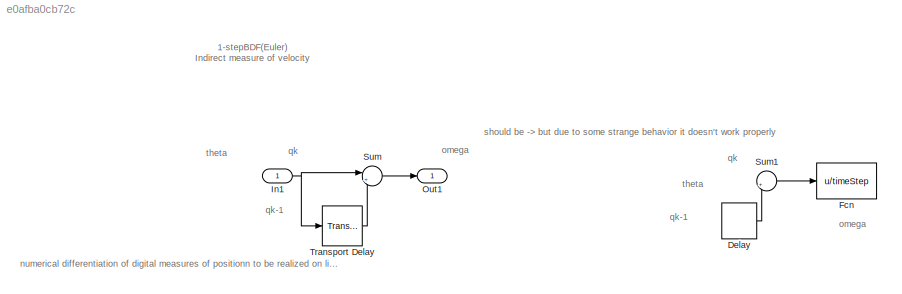
MODEL slx_e0afba0cb72c
KIND model
CONFIG AbsTol = auto
CONFIG EnableMultiTasking = off
CONFIG FixedStep = auto
CONFIG MaxStep = auto
CONFIG MinStep = auto
CONFIG RelTol = 1e-3
CONFIG SampleTimeConstraint = Unconstrained
CONFIG Solver = VariableStepAuto
CONFIG SolverName = VariableStepAuto
CONFIG StartTime = 0.0
CONFIG StopTime = 10.0
BLOCK [Delay] Delay
  Commented = on
  DelayLength = 1
  InitialCondition = 0
  InputPortMap = u0
  Ports = [1, 1]
  SampleTime = timeStep
BLOCK [Fcn] Fcn
  Commented = on
  Expr = u/timeStep
BLOCK [Inport] In1
  IconDisplay = Port number
BLOCK [Outport] Out1
  IconDisplay = Port number
BLOCK [Sum] Sum
  IconShape = round
  InputSameDT = off
  Inputs = |+-
  OutDataTypeStr = Inherit: Inherit via internal rule
  Ports = [2, 1]
  SaturateOnIntegerOverflow = off
BLOCK [Sum] Sum1
  Commented = on
  IconShape = round
  InputSameDT = off
  Inputs = |+-
  OutDataTypeStr = Inherit: Inherit via internal rule
  Ports = [2, 1]
  SaturateOnIntegerOverflow = off
BLOCK [TransportDelay] Transport Delay
  Ports = [1, 1]
ANNOTATION (root): 1-stepBDF(Euler) Indirect measure of velocity
ANNOTATION (root): numerical differentiation of digital measures of positionn to be realized on line with Backward Differentiation Formulas (BDFs)
ANNOTATION (root): omega
ANNOTATION (root): qk
ANNOTATION (root): qk-1
ANNOTATION (root): should be -> but due to some strange behavior it doesn't work properly
ANNOTATION (root): theta
LINE Delay:1 -> Sum1:2
NET In1:1 -> Sum:1, Transport Delay:1
LINE Sum1:1 -> Fcn:1
LINE Sum:1 -> Out1:1
LINE Transport Delay:1 -> Sum:2
note: NET lines group one-source signal fan-out (src -> all destinations, sorted); 1:1 wires keep LINE
